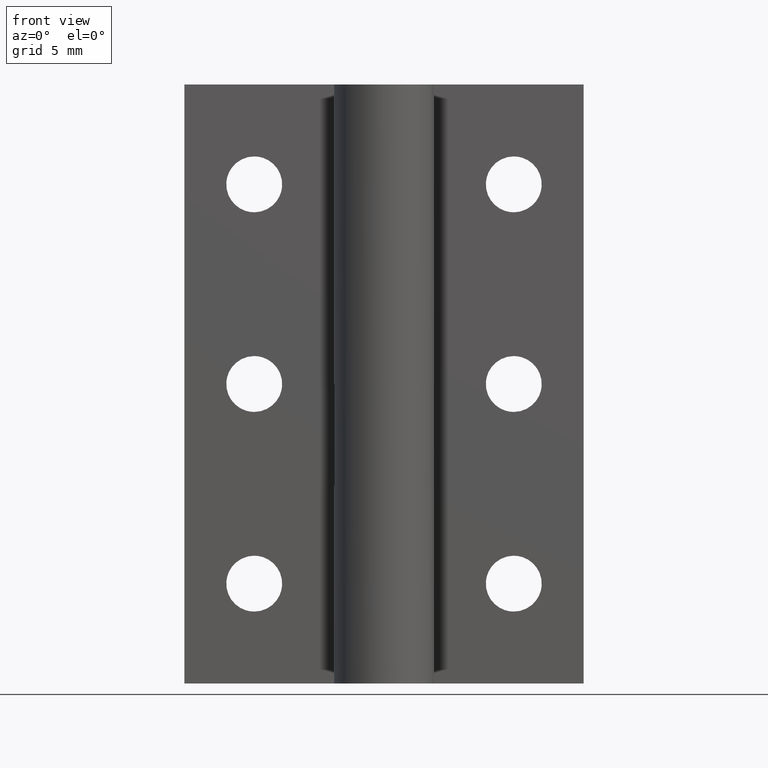
[diagram: clean part render]
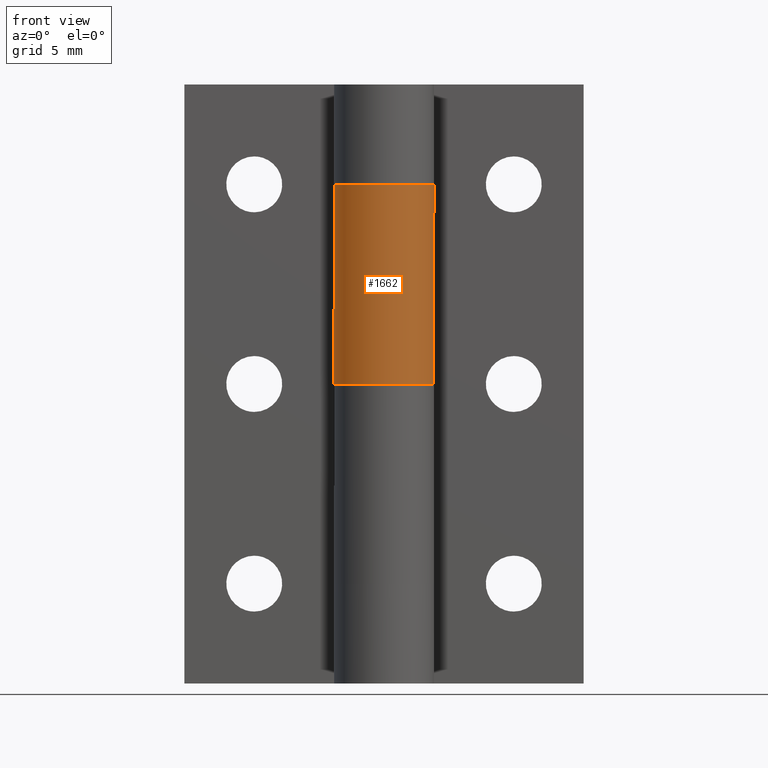
[diagram: same view with one face highlighted and labeled with its STEP entity id]
A machine part, front view. The second image highlights one B-rep face of the part: STEP entity #1662.
In plain terms, the highlighted face is a freeform B-spline surface patch.
Its self-contained STEP definition (entity closure, byte-faithful):
#846=CARTESIAN_POINT('',(-1.500000000000000,2.0,25.0));
#847=VERTEX_POINT('',#846);
#848=CARTESIAN_POINT('',(0.759234000085447,2.381924376027555,25.0));
#849=VERTEX_POINT('',#848);
#850=CARTESIAN_POINT('',(-1.500000000000000,2.0,25.0));
#851=CARTESIAN_POINT('',(-3.072788938937681,0.820408295796740,25.000000000000004));
#852=CARTESIAN_POINT('',(-2.297278872962674,-0.986159104728717,25.0));
#853=CARTESIAN_POINT('',(-1.521768806987669,-2.792726505254175,25.000000000000004));
#854=CARTESIAN_POINT('',(0.416713479393650,-2.465025329705892,25.0));
#855=CARTESIAN_POINT('',(2.355195765774966,-2.137324154157609,25.000000000000004));
#856=CARTESIAN_POINT('',(2.493780960930750,-0.176228598414978,25.0));
#857=CARTESIAN_POINT('',(2.632366156086533,1.784866957327653,25.000000000000004));
#858=CARTESIAN_POINT('',(0.759234000085447,2.381924376027554,25.0));
#866=(BOUNDED_CURVE()B_SPLINE_CURVE(2,(#850,#851,#852,#853,#854,#855,#856,#857,#858),.UNSPECIFIED.,.F.,.U.)B_SPLINE_CURVE_WITH_KNOTS((3,2,2,2,3),(0.0,0.250000000000000,0.500000000000000,0.750000000000000,1.0),.UNSPECIFIED.)CURVE()GEOMETRIC_REPRESENTATION_ITEM()RATIONAL_B_SPLINE_CURVE((1.0,0.786058527082383,1.0,0.786058527082383,1.0,0.786058527082383,1.0,0.786058527082383,1.0))REPRESENTATION_ITEM(''));
#867=EDGE_CURVE('',#847,#849,#866,.T.);
#1060=CARTESIAN_POINT('',(0.759234000085447,2.381924376027555,15.0));
#1061=VERTEX_POINT('',#1060);
#1062=CARTESIAN_POINT('',(-1.500000000000000,2.0,15.0));
#1063=VERTEX_POINT('',#1062);
#1064=CARTESIAN_POINT('',(0.759234000085446,2.381924376027554,15.0));
#1065=CARTESIAN_POINT('',(2.632366156086533,1.784866957327654,15.000000000000002));
#1066=CARTESIAN_POINT('',(2.493780960930750,-0.176228598414977,15.0));
#1067=CARTESIAN_POINT('',(2.355195765774967,-2.137324154157607,15.000000000000002));
#1068=CARTESIAN_POINT('',(0.416713479393651,-2.465025329705891,15.0));
#1069=CARTESIAN_POINT('',(-1.521768806987667,-2.792726505254175,15.000000000000002));
#1070=CARTESIAN_POINT('',(-2.297278872962674,-0.986159104728719,15.0));
#1071=CARTESIAN_POINT('',(-3.072788938937682,0.820408295796739,15.000000000000002));
#1072=CARTESIAN_POINT('',(-1.500000000000000,2.0,15.0));
#1080=(BOUNDED_CURVE()B_SPLINE_CURVE(2,(#1064,#1065,#1066,#1067,#1068,#1069,#1070,#1071,#1072),.UNSPECIFIED.,.F.,.U.)B_SPLINE_CURVE_WITH_KNOTS((3,2,2,2,3),(0.0,0.250000000000000,0.500000000000000,0.750000000000000,1.0),.UNSPECIFIED.)CURVE()GEOMETRIC_REPRESENTATION_ITEM()RATIONAL_B_SPLINE_CURVE((1.0,0.786058527082383,1.0,0.786058527082383,1.0,0.786058527082383,1.0,0.786058527082383,1.0))REPRESENTATION_ITEM(''));
#1081=EDGE_CURVE('',#1061,#1063,#1080,.T.);
#1621=CARTESIAN_POINT('',(0.759234000085447,2.381924376027555,25.0));
#1622=CARTESIAN_POINT('',(0.759234000085447,2.381924376027555,15.0));
#1623=QUASI_UNIFORM_CURVE('',1,(#1621,#1622),.UNSPECIFIED.,.F.,.U.);
#1624=EDGE_CURVE('',#849,#1061,#1623,.T.);
#1630=CARTESIAN_POINT('',(-1.447132090847586,2.038580072412926,25.250000000000000));
#1631=CARTESIAN_POINT('',(-1.447132090847586,2.038580072412926,14.743750000000000));
#1632=CARTESIAN_POINT('',(-4.025336926762003,0.208383159708850,25.250000000000007));
#1633=CARTESIAN_POINT('',(-4.025336926762003,0.208383159708850,14.743749999999999));
#1634=CARTESIAN_POINT('',(-1.649898255517499,-1.878253376528393,25.250000000000000));
#1635=CARTESIAN_POINT('',(-1.649898255517499,-1.878253376528393,14.743750000000000));
#1636=CARTESIAN_POINT('',(0.725540415727004,-3.964889912765636,25.250000000000007));
#1637=CARTESIAN_POINT('',(0.725540415727004,-3.964889912765636,14.743749999999999));
#1638=CARTESIAN_POINT('',(2.208117536512788,-1.172269996606878,25.250000000000000));
#1639=CARTESIAN_POINT('',(2.208117536512788,-1.172269996606878,14.743750000000000));
#1640=CARTESIAN_POINT('',(3.690694657298573,1.620349919551878,25.250000000000007));
#1641=CARTESIAN_POINT('',(3.690694657298573,1.620349919551878,14.743749999999999));
#1642=CARTESIAN_POINT('',(0.631444358748402,2.418941508553858,25.250000000000000));
#1643=CARTESIAN_POINT('',(0.631444358748402,2.418941508553858,14.743750000000000));
#1651=(BOUNDED_SURFACE()B_SPLINE_SURFACE(1,2,((#1630,#1632,#1634,#1636,#1638,#1640,#1642),(#1631,#1633,#1635,#1637,#1639,#1641,#1643)),.UNSPECIFIED.,.F.,.F.,.U.)B_SPLINE_SURFACE_WITH_KNOTS((2,2),(3,2,2,3),(0.0,10.506250000000010),(0.0,4.841368240277000,9.682736480554000,14.524104720831000),.UNSPECIFIED.)GEOMETRIC_REPRESENTATION_ITEM()RATIONAL_B_SPLINE_SURFACE(((1.0,0.620235491268260,1.0,0.620235491268260,1.0,0.620235491268260,1.0),(1.0,0.620235491268260,1.0,0.620235491268260,1.0,0.620235491268260,1.0)))REPRESENTATION_ITEM('')SURFACE());
#1652=ORIENTED_EDGE('',*,*,#867,.F.);
#1653=CARTESIAN_POINT('',(-1.500000000000000,2.0,25.0));
#1654=CARTESIAN_POINT('',(-1.500000000000000,2.0,15.0));
#1655=QUASI_UNIFORM_CURVE('',1,(#1653,#1654),.UNSPECIFIED.,.F.,.U.);
#1656=EDGE_CURVE('',#847,#1063,#1655,.T.);
#1657=ORIENTED_EDGE('',*,*,#1656,.T.);
#1658=ORIENTED_EDGE('',*,*,#1081,.F.);
#1659=ORIENTED_EDGE('',*,*,#1624,.F.);
#1660=EDGE_LOOP('',(#1652,#1657,#1658,#1659));
#1661=FACE_OUTER_BOUND('',#1660,.T.);
#1662=ADVANCED_FACE('',(#1661),#1651,.T.);